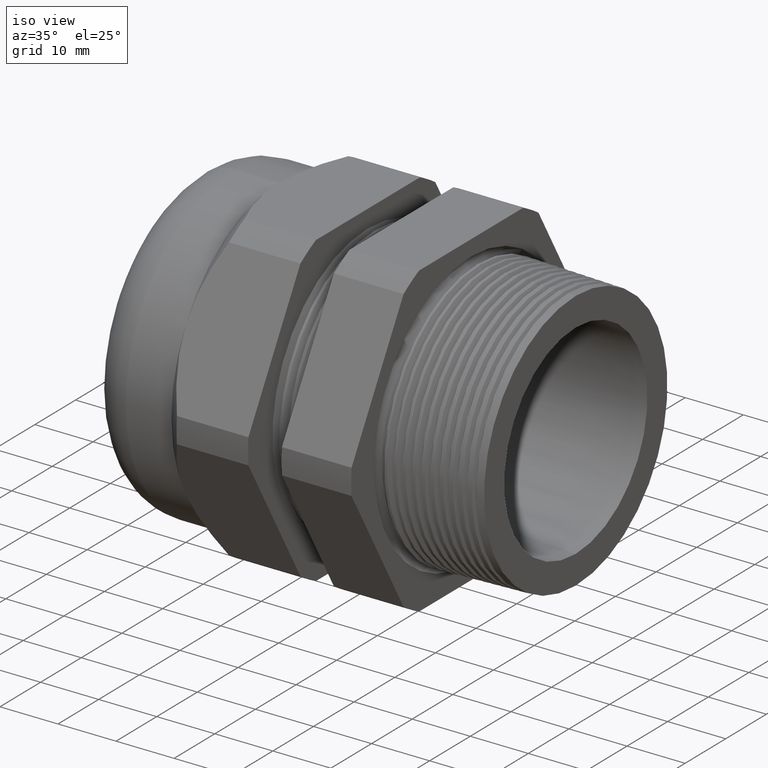
[diagram: clean part render]
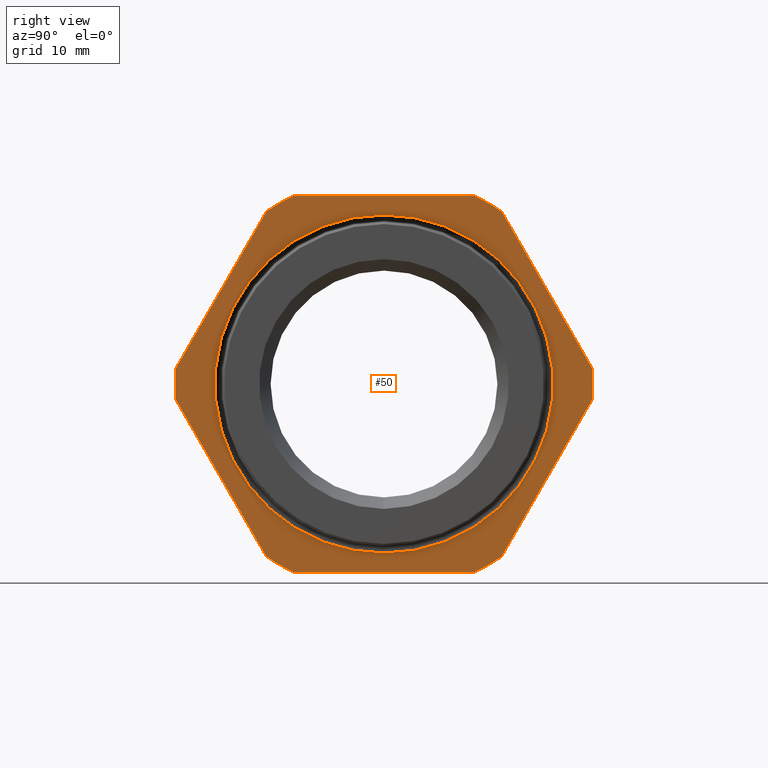
[diagram: tour spotlight — one face highlighted and labeled with its STEP entity id]
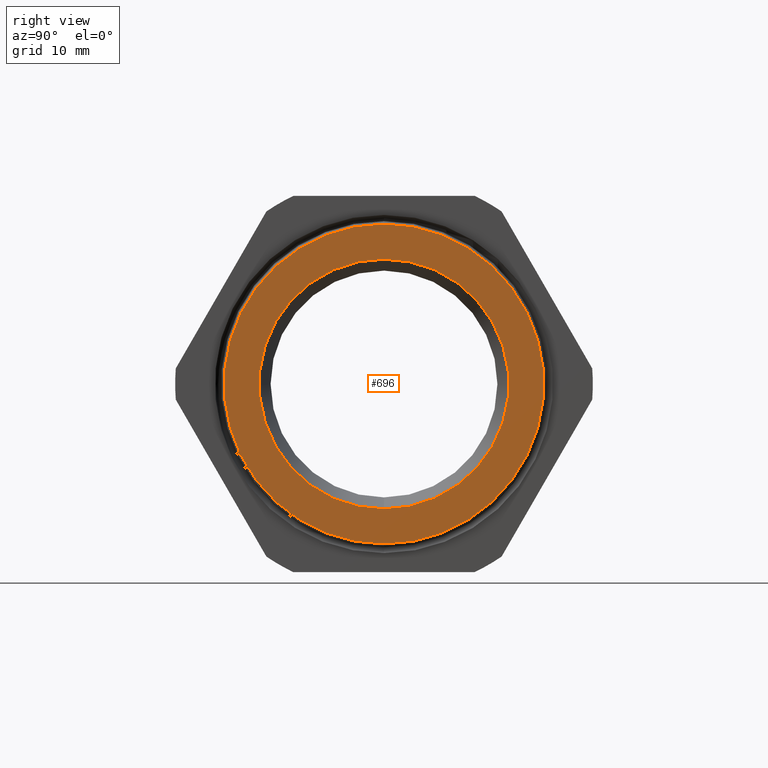
[diagram: tour spotlight — one face highlighted and labeled with its STEP entity id]
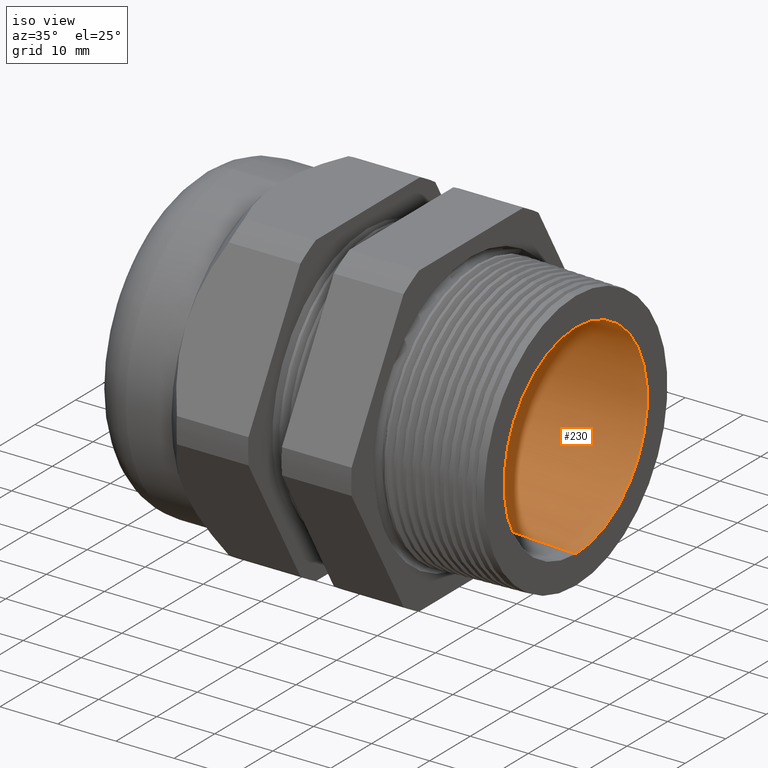
[diagram: tour spotlight — one face highlighted and labeled with its STEP entity id]
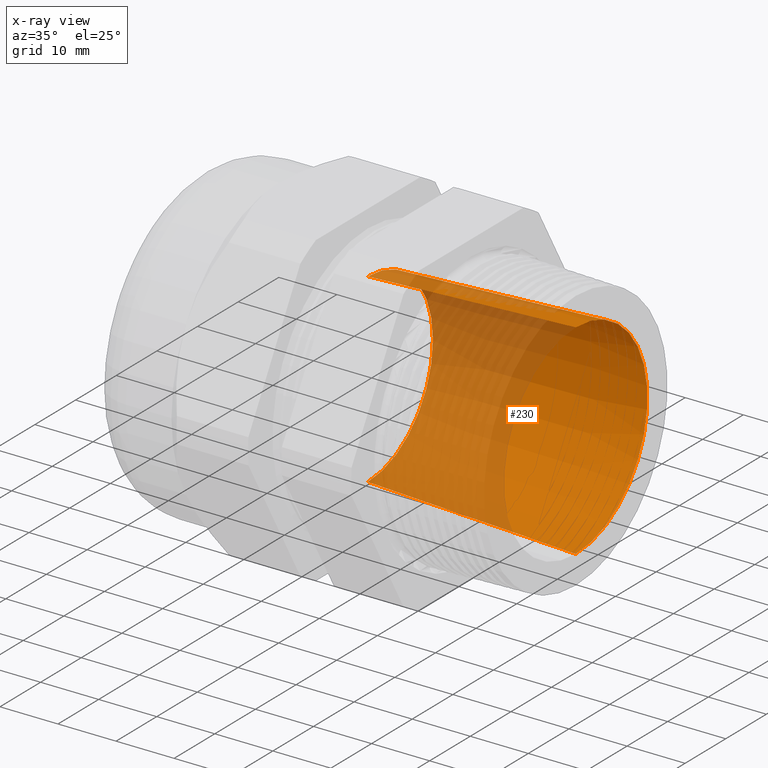
[diagram: x-ray of the same camera — body ghosted, this tour face saturated]
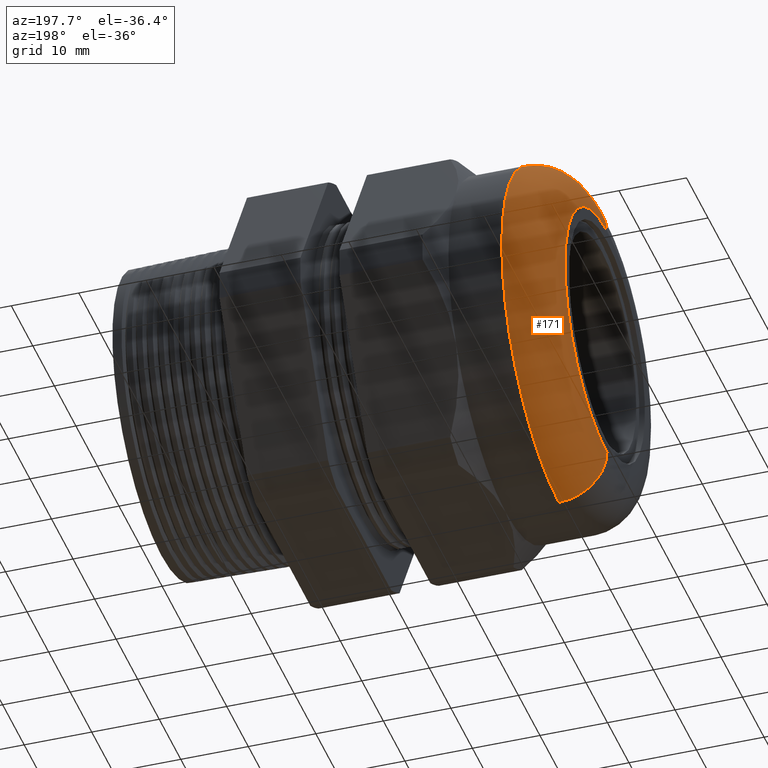
[diagram: tour spotlight — one face highlighted and labeled with its STEP entity id]
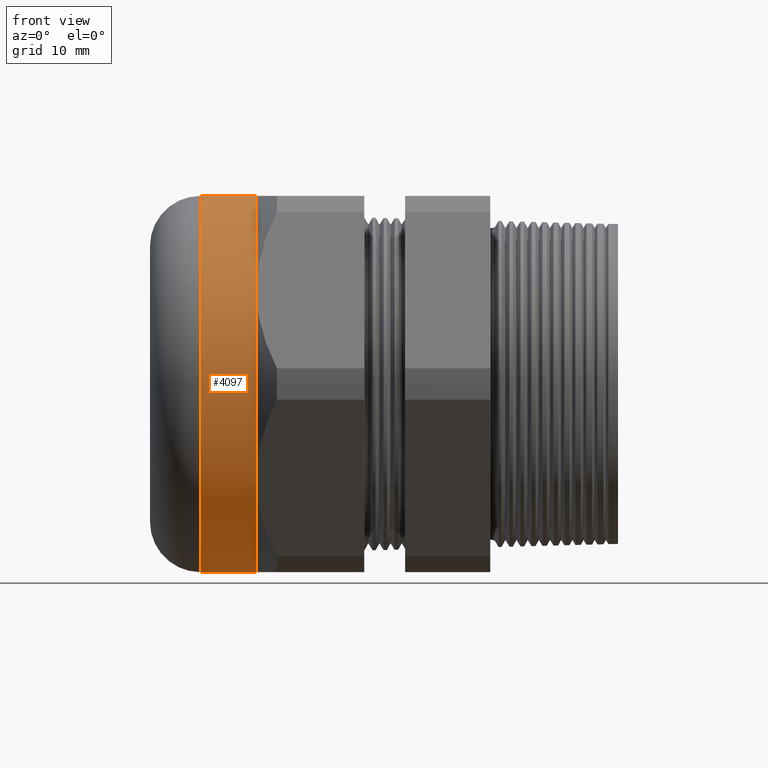
[diagram: tour spotlight — one face highlighted and labeled with its STEP entity id]
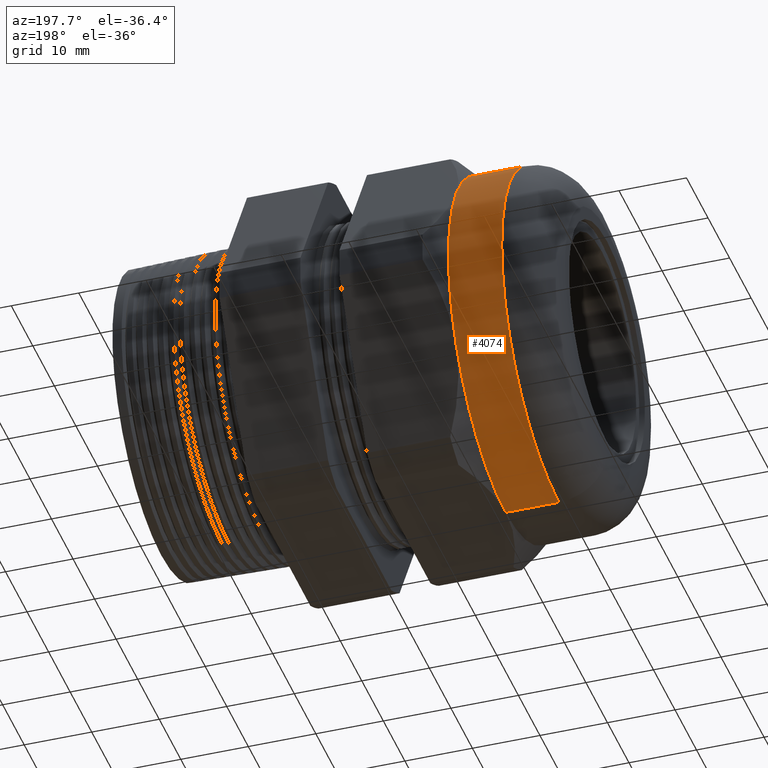
[diagram: tour spotlight — one face highlighted and labeled with its STEP entity id]
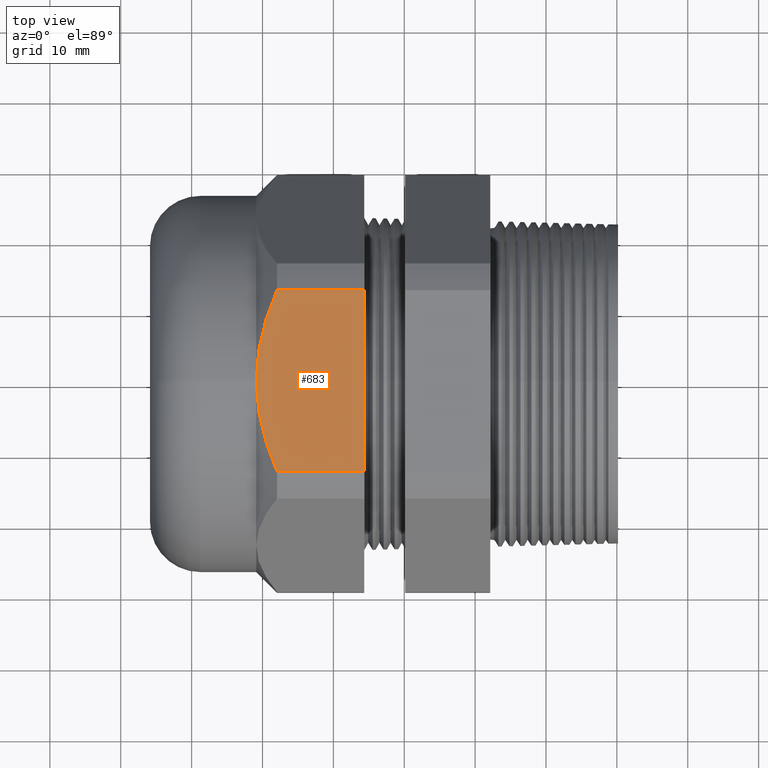
[diagram: tour spotlight — one face highlighted and labeled with its STEP entity id]
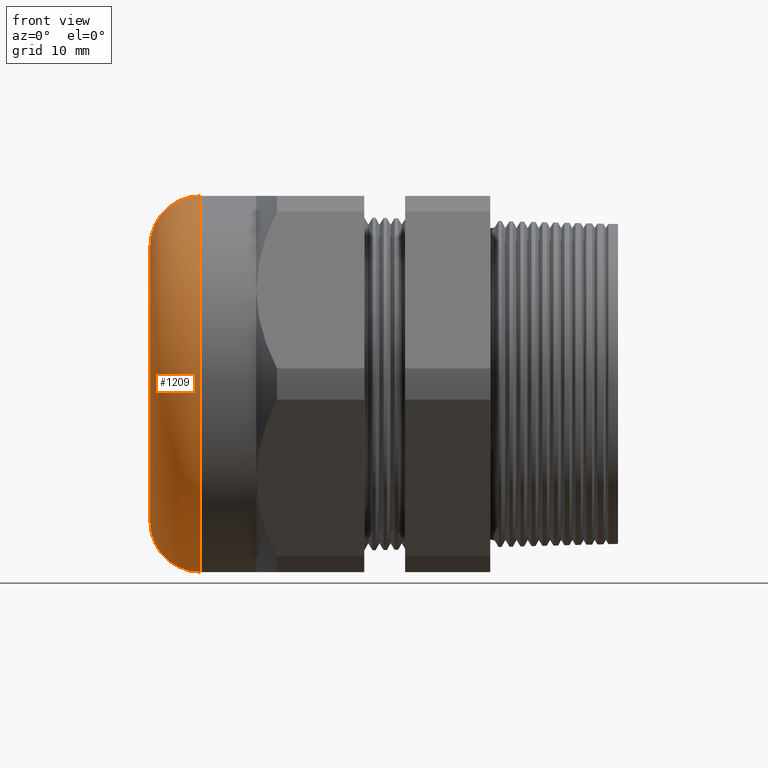
[diagram: tour spotlight — one face highlighted and labeled with its STEP entity id]
A machine part: a face-by-face anatomy tour. The part has 152 B-rep faces; the first image is the clean iso view, then the 8 largest visible faces are spotlighted one at a time (largest first), each with its STEP entity span.

Face 1 — right view, entity #50. In plain terms, the highlighted planar face has unit normal (1, 0, 0).
Definition (entity closure, byte-faithful):
#41 = EDGE_CURVE ( 'NONE', #44, #4137, #1325, .T. ) ;
#43 = ORIENTED_EDGE ( 'NONE', *, *, #41, .T. ) ;
#44 = VERTEX_POINT ( 'NONE', #1320 ) ;
#45 = VERTEX_POINT ( 'NONE', #1319 ) ;
#46 = EDGE_LOOP ( 'NONE', ( #47, #43, #4134, #4133, #62, #61, #119, #4119, #4146, #4136, #4150, #4132 ) ) ;
#47 = ORIENTED_EDGE ( 'NONE', *, *, #48, .T. ) ;
#48 = EDGE_CURVE ( 'NONE', #45, #44, #1317, .T. ) ;
#50 = ADVANCED_FACE ( 'NONE', ( #1313, #1312 ), #1379, .T. ) ;
#58 = VERTEX_POINT ( 'NONE', #1361 ) ;
#60 = EDGE_CURVE ( 'NONE', #63, #58, #1360, .T. ) ;
#61 = ORIENTED_EDGE ( 'NONE', *, *, #60, .T. ) ;
#62 = ORIENTED_EDGE ( 'NONE', *, *, #64, .T. ) ;
#63 = VERTEX_POINT ( 'NONE', #1355 ) ;
#64 = EDGE_CURVE ( 'NONE', #4147, #63, #1354, .T. ) ;
#119 = ORIENTED_EDGE ( 'NONE', *, *, #4121, .T. ) ;
#764 = VERTEX_POINT ( 'NONE', #2618 ) ;
#767 = EDGE_CURVE ( 'NONE', #764, #770, #2617, .T. ) ;
#770 = VERTEX_POINT ( 'NONE', #2669 ) ;
#1312 = FACE_BOUND ( 'NONE', #4166, .T. ) ;
#1313 = FACE_OUTER_BOUND ( 'NONE', #46, .T. ) ;
#1314 = DIRECTION ( 'NONE',  ( 0.0000000000000000000, 0.4999999999999996100, 0.8660254037844388200 ) ) ;
#1315 = VECTOR ( 'NONE', #1314, 39.37007874015748100 ) ;
#1316 = CARTESIAN_POINT ( 'NONE',  ( -0.3100000000000000000, 1.427496546954738300, 0.3824965469547380000 ) ) ;
#1317 = LINE ( 'NONE', #1316, #1315 ) ;
#1319 = CARTESIAN_POINT ( 'NONE',  ( -0.3099999999999997200, 0.6532729870224199800, -0.9584979952648858800 ) ) ;
#1320 = CARTESIAN_POINT ( 'NONE',  ( -0.3100000000000000000, 1.156720106887058100, -0.08650200473511392200 ) ) ;
#1321 = DIRECTION ( 'NONE',  ( 0.0000000000000000000, 0.0000000000000000000, -1.000000000000000000 ) ) ;
#1322 = DIRECTION ( 'NONE',  ( 1.000000000000000000, 0.0000000000000000000, 0.0000000000000000000 ) ) ;
#1323 = CARTESIAN_POINT ( 'NONE',  ( -0.3100000000000000000, 0.0000000000000000000, 0.0000000000000000000 ) ) ;
#1324 = AXIS2_PLACEMENT_3D ( 'NONE', #1323, #1322, #1321 ) ;
#1325 = CIRCLE ( 'NONE', #1324, 1.159950000000000000 ) ;
#1351 = DIRECTION ( 'NONE',  ( 0.0000000000000000000, -1.000000000000000000, 0.0000000000000000000 ) ) ;
#1352 = VECTOR ( 'NONE', #1351, 39.37007874015748100 ) ;
#1353 = CARTESIAN_POINT ( 'NONE',  ( -0.3100000000000000000, 2.089999999999999900, 1.044999999999999700 ) ) ;
#1354 = LINE ( 'NONE', #1353, #1352 ) ;
#1355 = CARTESIAN_POINT ( 'NONE',  ( -0.3099999999999997200, -0.5034471198646400800, 1.044999999999999300 ) ) ;
#1356 = DIRECTION ( 'NONE',  ( 0.0000000000000000000, 0.0000000000000000000, -1.000000000000000000 ) ) ;
#1357 = DIRECTION ( 'NONE',  ( 1.000000000000000000, 0.0000000000000000000, 0.0000000000000000000 ) ) ;
#1358 = CARTESIAN_POINT ( 'NONE',  ( -0.3100000000000000000, 0.0000000000000000000, 0.0000000000000000000 ) ) ;
#1359 = AXIS2_PLACEMENT_3D ( 'NONE', #1358, #1357, #1356 ) ;
#1360 = CIRCLE ( 'NONE', #1359, 1.159950000000000000 ) ;
#1361 = CARTESIAN_POINT ( 'NONE',  ( -0.3099999999999997200, -0.6532729870224188700, 0.9584979952648864400 ) ) ;
#1375 = DIRECTION ( 'NONE',  ( 0.0000000000000000000, 0.0000000000000000000, -1.000000000000000000 ) ) ;
#1376 = DIRECTION ( 'NONE',  ( 1.000000000000000000, 0.0000000000000000000, 0.0000000000000000000 ) ) ;
#1377 = CARTESIAN_POINT ( 'NONE',  ( -0.3100000000000000000, 2.089999999999999900, 0.0000000000000000000 ) ) ;
#1378 = AXIS2_PLACEMENT_3D ( 'NONE', #1377, #1376, #1375 ) ;
#1379 = PLANE ( 'NONE',  #1378 ) ;
#2614 = DIRECTION ( 'NONE',  ( -1.000000000000000000, 0.0000000000000000000, 0.0000000000000000000 ) ) ;
#2615 = CARTESIAN_POINT ( 'NONE',  ( -0.3100000000000000000, 0.0000000000000000000, 0.0000000000000000000 ) ) ;
#2616 = AXIS2_PLACEMENT_3D ( 'NONE', #2615, #2614, #2676 ) ;
#2617 = CIRCLE ( 'NONE', #2616, 0.9391709214538901400 ) ;
#2618 = CARTESIAN_POINT ( 'NONE',  ( -0.3100000000000000000, 0.0000000000000000000, -0.9391709214538901400 ) ) ;
#2669 = CARTESIAN_POINT ( 'NONE',  ( -0.3100000000000000000, 1.150152662810777000E-016, 0.9391709214538901400 ) ) ;
#2676 = DIRECTION ( 'NONE',  ( 0.0000000000000000000, 0.0000000000000000000, -1.000000000000000000 ) ) ;
#3736 = DIRECTION ( 'NONE',  ( 0.0000000000000000000, -0.4999999999999997200, -0.8660254037844388200 ) ) ;
#3737 = VECTOR ( 'NONE', #3736, 39.37007874015748900 ) ;
#3738 = CARTESIAN_POINT ( 'NONE',  ( -0.3100000000000000000, -0.3824965469547395000, 1.427496546954737800 ) ) ;
#3739 = LINE ( 'NONE', #3738, #3737 ) ;
#3740 = CARTESIAN_POINT ( 'NONE',  ( -0.3099999999999997200, -1.156720106887058100, 0.08650200473511256100 ) ) ;
#3741 = DIRECTION ( 'NONE',  ( 0.0000000000000000000, 0.0000000000000000000, -1.000000000000000000 ) ) ;
#3742 = DIRECTION ( 'NONE',  ( 1.000000000000000000, 0.0000000000000000000, 0.0000000000000000000 ) ) ;
#3743 = CARTESIAN_POINT ( 'NONE',  ( -0.3100000000000000000, 0.0000000000000000000, 0.0000000000000000000 ) ) ;
#3744 = AXIS2_PLACEMENT_3D ( 'NONE', #3743, #3742, #3741 ) ;
#3745 = CIRCLE ( 'NONE', #3744, 1.159950000000000000 ) ;
#3767 = CARTESIAN_POINT ( 'NONE',  ( -0.3099999999999997200, 0.5034471198646385300, -1.045000000000000200 ) ) ;
#3768 = CARTESIAN_POINT ( 'NONE',  ( -0.3099999999999997200, 0.6532729870224199800, 0.9584979952648858800 ) ) ;
#3769 = CARTESIAN_POINT ( 'NONE',  ( -0.3099999999999997200, -1.156720106887057800, -0.08650200473511345000 ) ) ;
#3771 = DIRECTION ( 'NONE',  ( 0.0000000000000000000, -0.4999999999999998300, 0.8660254037844388200 ) ) ;
#3772 = VECTOR ( 'NONE', #3771, 39.37007874015748100 ) ;
#3773 = CARTESIAN_POINT ( 'NONE',  ( -0.3100000000000000000, 1.427496546954738500, -0.3824965469547380000 ) ) ;
#3774 = LINE ( 'NONE', #3773, #3772 ) ;
#3775 = CARTESIAN_POINT ( 'NONE',  ( -0.3099999999999997200, -0.5034471198646384100, -1.045000000000000200 ) ) ;
#3776 = DIRECTION ( 'NONE',  ( 0.0000000000000000000, 0.5000000000000002200, -0.8660254037844386000 ) ) ;
#3777 = VECTOR ( 'NONE', #3776, 39.37007874015747400 ) ;
#3778 = CARTESIAN_POINT ( 'NONE',  ( -0.3100000000000000000, -0.3824965469547378400, -1.427496546954738300 ) ) ;
#3779 = LINE ( 'NONE', #3778, #3777 ) ;
#3780 = CARTESIAN_POINT ( 'NONE',  ( -0.3099999999999997200, 1.156720106887057600, 0.08650200473511453200 ) ) ;
#3781 = CARTESIAN_POINT ( 'NONE',  ( -0.3099999999999997200, -0.6532729870224186500, -0.9584979952648867700 ) ) ;
#3815 = DIRECTION ( 'NONE',  ( 0.0000000000000000000, 0.0000000000000000000, -1.000000000000000000 ) ) ;
#3816 = DIRECTION ( 'NONE',  ( 1.000000000000000000, 0.0000000000000000000, 0.0000000000000000000 ) ) ;
#3817 = AXIS2_PLACEMENT_3D ( 'NONE', #3824, #3816, #3815 ) ;
#3818 = CIRCLE ( 'NONE', #3817, 1.159950000000000000 ) ;
#3819 = DIRECTION ( 'NONE',  ( 0.0000000000000000000, 0.0000000000000000000, -1.000000000000000000 ) ) ;
#3820 = DIRECTION ( 'NONE',  ( 1.000000000000000000, 0.0000000000000000000, 0.0000000000000000000 ) ) ;
#3821 = CARTESIAN_POINT ( 'NONE',  ( -0.3100000000000000000, 0.0000000000000000000, 0.0000000000000000000 ) ) ;
#3822 = AXIS2_PLACEMENT_3D ( 'NONE', #3821, #3820, #3819 ) ;
#3823 = CIRCLE ( 'NONE', #3822, 1.159950000000000000 ) ;
#3824 = CARTESIAN_POINT ( 'NONE',  ( -0.3100000000000000000, 0.0000000000000000000, 0.0000000000000000000 ) ) ;
#3825 = CARTESIAN_POINT ( 'NONE',  ( -0.3099999999999997200, 0.5034471198646395300, 1.044999999999999700 ) ) ;
#3826 = DIRECTION ( 'NONE',  ( 0.0000000000000000000, 1.000000000000000000, 0.0000000000000000000 ) ) ;
#3827 = VECTOR ( 'NONE', #3826, 39.37007874015748100 ) ;
#3828 = CARTESIAN_POINT ( 'NONE',  ( -0.3100000000000000000, 2.089999999999999900, -1.045000000000000200 ) ) ;
#3829 = LINE ( 'NONE', #3828, #3827 ) ;
#3843 = DIRECTION ( 'NONE',  ( 0.0000000000000000000, 0.0000000000000000000, -1.000000000000000000 ) ) ;
#3844 = DIRECTION ( 'NONE',  ( 1.000000000000000000, 0.0000000000000000000, 0.0000000000000000000 ) ) ;
#3845 = CARTESIAN_POINT ( 'NONE',  ( -0.3100000000000000000, 0.0000000000000000000, 0.0000000000000000000 ) ) ;
#3846 = AXIS2_PLACEMENT_3D ( 'NONE', #3845, #3844, #3843 ) ;
#3847 = CIRCLE ( 'NONE', #3846, 1.159950000000000000 ) ;
#3848 = DIRECTION ( 'NONE',  ( 0.0000000000000000000, 0.0000000000000000000, -1.000000000000000000 ) ) ;
#3849 = DIRECTION ( 'NONE',  ( -1.000000000000000000, 0.0000000000000000000, 0.0000000000000000000 ) ) ;
#3850 = AXIS2_PLACEMENT_3D ( 'NONE', #3856, #3849, #3848 ) ;
#3851 = CIRCLE ( 'NONE', #3850, 0.9391709214538901400 ) ;
#3856 = CARTESIAN_POINT ( 'NONE',  ( -0.3100000000000000000, 0.0000000000000000000, 0.0000000000000000000 ) ) ;
#4117 = EDGE_CURVE ( 'NONE', #4120, #4142, #3745, .T. ) ;
#4119 = ORIENTED_EDGE ( 'NONE', *, *, #4117, .T. ) ;
#4120 = VERTEX_POINT ( 'NONE', #3740 ) ;
#4121 = EDGE_CURVE ( 'NONE', #58, #4120, #3739, .T. ) ;
#4132 = ORIENTED_EDGE ( 'NONE', *, *, #4169, .T. ) ;
#4133 = ORIENTED_EDGE ( 'NONE', *, *, #4149, .T. ) ;
#4134 = ORIENTED_EDGE ( 'NONE', *, *, #4140, .T. ) ;
#4135 = VERTEX_POINT ( 'NONE', #3781 ) ;
#4136 = ORIENTED_EDGE ( 'NONE', *, *, #4148, .T. ) ;
#4137 = VERTEX_POINT ( 'NONE', #3780 ) ;
#4138 = EDGE_CURVE ( 'NONE', #4142, #4135, #3779, .T. ) ;
#4139 = VERTEX_POINT ( 'NONE', #3775 ) ;
#4140 = EDGE_CURVE ( 'NONE', #4137, #4143, #3774, .T. ) ;
#4142 = VERTEX_POINT ( 'NONE', #3769 ) ;
#4143 = VERTEX_POINT ( 'NONE', #3768 ) ;
#4144 = VERTEX_POINT ( 'NONE', #3767 ) ;
#4145 = EDGE_CURVE ( 'NONE', #4139, #4144, #3829, .T. ) ;
#4146 = ORIENTED_EDGE ( 'NONE', *, *, #4138, .T. ) ;
#4147 = VERTEX_POINT ( 'NONE', #3825 ) ;
#4148 = EDGE_CURVE ( 'NONE', #4135, #4139, #3823, .T. ) ;
#4149 = EDGE_CURVE ( 'NONE', #4143, #4147, #3818, .T. ) ;
#4150 = ORIENTED_EDGE ( 'NONE', *, *, #4145, .T. ) ;
#4162 = ORIENTED_EDGE ( 'NONE', *, *, #767, .T. ) ;
#4163 = EDGE_CURVE ( 'NONE', #770, #764, #3851, .T. ) ;
#4164 = ORIENTED_EDGE ( 'NONE', *, *, #4163, .T. ) ;
#4166 = EDGE_LOOP ( 'NONE', ( #4162, #4164 ) ) ;
#4169 = EDGE_CURVE ( 'NONE', #4144, #45, #3847, .T. ) ;

Face 2 — right view, entity #696. In plain terms, the highlighted planar face has unit normal (1, 0, 0).
Definition (entity closure, byte-faithful):
#375 = VERTEX_POINT ( 'NONE', #1929 ) ;
#379 = EDGE_CURVE ( 'NONE', #380, #375, #1980, .T. ) ;
#380 = VERTEX_POINT ( 'NONE', #1976 ) ;
#423 = ORIENTED_EDGE ( 'NONE', *, *, #379, .F. ) ;
#424 = ORIENTED_EDGE ( 'NONE', *, *, #425, .F. ) ;
#425 = EDGE_CURVE ( 'NONE', #375, #380, #2030, .T. ) ;
#434 = EDGE_LOOP ( 'NONE', ( #424, #423 ) ) ;
#436 = ORIENTED_EDGE ( 'NONE', *, *, #4091, .T. ) ;
#676 = EDGE_LOOP ( 'NONE', ( #697, #436 ) ) ;
#677 = EDGE_CURVE ( 'NONE', #4090, #4089, #2477, .T. ) ;
#696 = ADVANCED_FACE ( 'NONE', ( #2489, #2488 ), #2486, .T. ) ;
#697 = ORIENTED_EDGE ( 'NONE', *, *, #677, .T. ) ;
#1923 = CARTESIAN_POINT ( 'NONE',  ( 0.4000000000000000800, 0.0000000000000000000, 0.0000000000000000000 ) ) ;
#1929 = CARTESIAN_POINT ( 'NONE',  ( 0.4000000000000000800, 0.0000000000000000000, -0.6937500000000000900 ) ) ;
#1976 = CARTESIAN_POINT ( 'NONE',  ( 0.4000000000000000800, 8.495987169084764700E-017, 0.6937500000000000900 ) ) ;
#1977 = DIRECTION ( 'NONE',  ( 0.0000000000000000000, 0.0000000000000000000, -1.000000000000000000 ) ) ;
#1978 = DIRECTION ( 'NONE',  ( 1.000000000000000000, 0.0000000000000000000, 0.0000000000000000000 ) ) ;
#1979 = AXIS2_PLACEMENT_3D ( 'NONE', #1923, #1978, #1977 ) ;
#1980 = CIRCLE ( 'NONE', #1979, 0.6937500000000000900 ) ;
#2027 = DIRECTION ( 'NONE',  ( 0.0000000000000000000, 0.0000000000000000000, -1.000000000000000000 ) ) ;
#2028 = DIRECTION ( 'NONE',  ( 1.000000000000000000, 0.0000000000000000000, 0.0000000000000000000 ) ) ;
#2029 = AXIS2_PLACEMENT_3D ( 'NONE', #2035, #2028, #2027 ) ;
#2030 = CIRCLE ( 'NONE', #2029, 0.6937500000000000900 ) ;
#2035 = CARTESIAN_POINT ( 'NONE',  ( 0.4000000000000000800, 0.0000000000000000000, 0.0000000000000000000 ) ) ;
#2474 = DIRECTION ( 'NONE',  ( 0.0000000000000000000, 0.0000000000000000000, -1.000000000000000000 ) ) ;
#2475 = DIRECTION ( 'NONE',  ( 1.000000000000000000, 0.0000000000000000000, 0.0000000000000000000 ) ) ;
#2476 = AXIS2_PLACEMENT_3D ( 'NONE', #2482, #2475, #2474 ) ;
#2477 = CIRCLE ( 'NONE', #2476, 0.8880922528443195900 ) ;
#2482 = CARTESIAN_POINT ( 'NONE',  ( 0.3999999999999999700, 0.0000000000000000000, 0.0000000000000000000 ) ) ;
#2486 = PLANE ( 'NONE',  #2549 ) ;
#2487 = CARTESIAN_POINT ( 'NONE',  ( 0.4000000000000000200, 0.6937500000000000900, 0.0000000000000000000 ) ) ;
#2488 = FACE_BOUND ( 'NONE', #434, .T. ) ;
#2489 = FACE_OUTER_BOUND ( 'NONE', #676, .T. ) ;
#2547 = DIRECTION ( 'NONE',  ( 0.0000000000000000000, 0.0000000000000000000, -1.000000000000000000 ) ) ;
#2548 = DIRECTION ( 'NONE',  ( 1.000000000000000000, 0.0000000000000000000, 0.0000000000000000000 ) ) ;
#2549 = AXIS2_PLACEMENT_3D ( 'NONE', #2487, #2548, #2547 ) ;
#3666 = DIRECTION ( 'NONE',  ( 0.0000000000000000000, 0.0000000000000000000, -1.000000000000000000 ) ) ;
#3667 = DIRECTION ( 'NONE',  ( 1.000000000000000000, 0.0000000000000000000, 0.0000000000000000000 ) ) ;
#3668 = AXIS2_PLACEMENT_3D ( 'NONE', #3680, #3667, #3666 ) ;
#3669 = CIRCLE ( 'NONE', #3668, 0.8880922528443195900 ) ;
#3680 = CARTESIAN_POINT ( 'NONE',  ( 0.3999999999999999700, 0.0000000000000000000, 0.0000000000000000000 ) ) ;
#3681 = CARTESIAN_POINT ( 'NONE',  ( 0.3999999999999999700, 0.0000000000000000000, 0.8880922528443195900 ) ) ;
#3683 = CARTESIAN_POINT ( 'NONE',  ( 0.3999999999999999700, 1.088459086049565000E-016, -0.8880922528443195900 ) ) ;
#4089 = VERTEX_POINT ( 'NONE', #3683 ) ;
#4090 = VERTEX_POINT ( 'NONE', #3681 ) ;
#4091 = EDGE_CURVE ( 'NONE', #4089, #4090, #3669, .T. ) ;

Face 3 — iso view, entity #230. An x-ray twin of the same camera follows (body ghosted, this face saturated) — the face is partly hidden behind the body. In plain terms, the highlighted conical surface has half-angle 2.59 deg.
Definition (entity closure, byte-faithful):
#200 = EDGE_LOOP ( 'NONE', ( #417, #415, #412, #413 ) ) ;
#230 = ADVANCED_FACE ( 'NONE', ( #1692 ), #1691, .F. ) ;
#375 = VERTEX_POINT ( 'NONE', #1929 ) ;
#380 = VERTEX_POINT ( 'NONE', #1976 ) ;
#381 = EDGE_CURVE ( 'NONE', #590, #380, #1975, .T. ) ;
#384 = EDGE_CURVE ( 'NONE', #386, #375, #1967, .T. ) ;
#386 = VERTEX_POINT ( 'NONE', #1963 ) ;
#412 = ORIENTED_EDGE ( 'NONE', *, *, #384, .T. ) ;
#413 = ORIENTED_EDGE ( 'NONE', *, *, #425, .T. ) ;
#415 = ORIENTED_EDGE ( 'NONE', *, *, #418, .F. ) ;
#417 = ORIENTED_EDGE ( 'NONE', *, *, #381, .F. ) ;
#418 = EDGE_CURVE ( 'NONE', #386, #590, #2042, .T. ) ;
#425 = EDGE_CURVE ( 'NONE', #375, #380, #2030, .T. ) ;
#590 = VERTEX_POINT ( 'NONE', #2273 ) ;
#1688 = DIRECTION ( 'NONE',  ( 0.0000000000000000000, 0.0000000000000000000, -1.000000000000000000 ) ) ;
#1689 = DIRECTION ( 'NONE',  ( 1.000000000000000000, 0.0000000000000000000, 0.0000000000000000000 ) ) ;
#1690 = AXIS2_PLACEMENT_3D ( 'NONE', #1697, #1689, #1688 ) ;
#1691 = CONICAL_SURFACE ( 'NONE', #1690, 0.6300000000000000000, 0.04519960285840475500 ) ;
#1692 = FACE_OUTER_BOUND ( 'NONE', #200, .T. ) ;
#1697 = CARTESIAN_POINT ( 'NONE',  ( -1.009449999999999500, 0.0000000000000000000, 0.0000000000000000000 ) ) ;
#1929 = CARTESIAN_POINT ( 'NONE',  ( 0.4000000000000000800, 0.0000000000000000000, -0.6937500000000000900 ) ) ;
#1963 = CARTESIAN_POINT ( 'NONE',  ( -1.009449999999999500, 0.0000000000000000000, -0.6300000000000000000 ) ) ;
#1964 = DIRECTION ( 'NONE',  ( 0.9989786718499510400, 0.0000000000000000000, -0.04518421393482174200 ) ) ;
#1965 = VECTOR ( 'NONE', #1964, 39.37007874015748900 ) ;
#1966 = CARTESIAN_POINT ( 'NONE',  ( -1.009449999999999500, 0.0000000000000000000, -0.6300000000000000000 ) ) ;
#1967 = LINE ( 'NONE', #1966, #1965 ) ;
#1972 = DIRECTION ( 'NONE',  ( 0.9989786718499510400, 5.533470296726868500E-018, 0.04518421393482174200 ) ) ;
#1973 = VECTOR ( 'NONE', #1972, 39.37007874015748900 ) ;
#1974 = CARTESIAN_POINT ( 'NONE',  ( -1.009449999999999500, 7.715274834628325400E-017, 0.6300000000000000000 ) ) ;
#1975 = LINE ( 'NONE', #1974, #1973 ) ;
#1976 = CARTESIAN_POINT ( 'NONE',  ( 0.4000000000000000800, 8.495987169084764700E-017, 0.6937500000000000900 ) ) ;
#2027 = DIRECTION ( 'NONE',  ( 0.0000000000000000000, 0.0000000000000000000, -1.000000000000000000 ) ) ;
#2028 = DIRECTION ( 'NONE',  ( 1.000000000000000000, 0.0000000000000000000, 0.0000000000000000000 ) ) ;
#2029 = AXIS2_PLACEMENT_3D ( 'NONE', #2035, #2028, #2027 ) ;
#2030 = CIRCLE ( 'NONE', #2029, 0.6937500000000000900 ) ;
#2035 = CARTESIAN_POINT ( 'NONE',  ( 0.4000000000000000800, 0.0000000000000000000, 0.0000000000000000000 ) ) ;
#2038 = DIRECTION ( 'NONE',  ( 0.0000000000000000000, 0.0000000000000000000, -1.000000000000000000 ) ) ;
#2039 = DIRECTION ( 'NONE',  ( 1.000000000000000000, 0.0000000000000000000, 0.0000000000000000000 ) ) ;
#2040 = CARTESIAN_POINT ( 'NONE',  ( -1.009449999999999500, 0.0000000000000000000, 0.0000000000000000000 ) ) ;
#2041 = AXIS2_PLACEMENT_3D ( 'NONE', #2040, #2039, #2038 ) ;
#2042 = CIRCLE ( 'NONE', #2041, 0.6300000000000000000 ) ;
#2273 = CARTESIAN_POINT ( 'NONE',  ( -1.009449999999999500, 8.105631001856545000E-017, 0.6300000000000000000 ) ) ;

Face 4 — auxiliary view, entity #171. In plain terms, the highlighted toroidal blend (fillet) surface has major radius 19.431 mm and minor (blend) radius 7.112 mm.
Definition (entity closure, byte-faithful):
#92 = ORIENTED_EDGE ( 'NONE', *, *, #149, .T. ) ;
#116 = VERTEX_POINT ( 'NONE', #1470 ) ;
#118 = VERTEX_POINT ( 'NONE', #1469 ) ;
#132 = EDGE_LOOP ( 'NONE', ( #162, #92, #161, #154 ) ) ;
#148 = VERTEX_POINT ( 'NONE', #1486 ) ;
#149 = EDGE_CURVE ( 'NONE', #118, #148, #1485, .T. ) ;
#152 = EDGE_CURVE ( 'NONE', #153, #148, #1540, .T. ) ;
#153 = VERTEX_POINT ( 'NONE', #1535 ) ;
#154 = ORIENTED_EDGE ( 'NONE', *, *, #158, .F. ) ;
#158 = EDGE_CURVE ( 'NONE', #116, #153, #1527, .T. ) ;
#161 = ORIENTED_EDGE ( 'NONE', *, *, #152, .F. ) ;
#162 = ORIENTED_EDGE ( 'NONE', *, *, #163, .F. ) ;
#163 = EDGE_CURVE ( 'NONE', #118, #116, #1521, .T. ) ;
#171 = ADVANCED_FACE ( 'NONE', ( #1566 ), #1565, .T. ) ;
#1469 = CARTESIAN_POINT ( 'NONE',  ( -1.919999999999999500, 0.0000000000000000000, -1.044999999999999900 ) ) ;
#1470 = CARTESIAN_POINT ( 'NONE',  ( -1.919999999999999500, 1.279755905108984100E-016, 1.044999999999999900 ) ) ;
#1481 = DIRECTION ( 'NONE',  ( 0.0000000000000000000, -1.224646799147353000E-016, 1.000000000000000000 ) ) ;
#1482 = DIRECTION ( 'NONE',  ( 0.0000000000000000000, 1.000000000000000000, 1.224646799147353200E-016 ) ) ;
#1483 = CARTESIAN_POINT ( 'NONE',  ( -1.919999999999999500, 9.368548013477251000E-017, -0.7649999999999999000 ) ) ;
#1484 = AXIS2_PLACEMENT_3D ( 'NONE', #1483, #1482, #1481 ) ;
#1485 = CIRCLE ( 'NONE', #1484, 0.2800000000000000300 ) ;
#1486 = CARTESIAN_POINT ( 'NONE',  ( -2.199999999999999300, 1.108305353228354700E-016, -0.7649999999999999000 ) ) ;
#1513 = DIRECTION ( 'NONE',  ( 0.0000000000000000000, 0.0000000000000000000, 1.000000000000000000 ) ) ;
#1514 = DIRECTION ( 'NONE',  ( 1.000000000000000000, 0.0000000000000000000, 0.0000000000000000000 ) ) ;
#1515 = CARTESIAN_POINT ( 'NONE',  ( -1.919999999999999500, 0.0000000000000000000, 0.0000000000000000000 ) ) ;
#1516 = AXIS2_PLACEMENT_3D ( 'NONE', #1515, #1514, #1513 ) ;
#1521 = CIRCLE ( 'NONE', #1516, 1.044999999999999900 ) ;
#1524 = DIRECTION ( 'NONE',  ( 0.0000000000000000000, 0.0000000000000000000, -1.000000000000000000 ) ) ;
#1525 = DIRECTION ( 'NONE',  ( 0.0000000000000000000, -1.000000000000000000, 0.0000000000000000000 ) ) ;
#1526 = AXIS2_PLACEMENT_3D ( 'NONE', #1533, #1525, #1524 ) ;
#1527 = CIRCLE ( 'NONE', #1526, 0.2800000000000000300 ) ;
#1533 = CARTESIAN_POINT ( 'NONE',  ( -1.919999999999999500, 0.0000000000000000000, 0.7649999999999999000 ) ) ;
#1535 = CARTESIAN_POINT ( 'NONE',  ( -2.199999999999999300, 0.0000000000000000000, 0.7649999999999999000 ) ) ;
#1536 = DIRECTION ( 'NONE',  ( 0.0000000000000000000, 0.0000000000000000000, 1.000000000000000000 ) ) ;
#1537 = DIRECTION ( 'NONE',  ( -1.000000000000000000, 0.0000000000000000000, 0.0000000000000000000 ) ) ;
#1538 = CARTESIAN_POINT ( 'NONE',  ( -2.199999999999999300, 0.0000000000000000000, 0.0000000000000000000 ) ) ;
#1539 = AXIS2_PLACEMENT_3D ( 'NONE', #1538, #1537, #1536 ) ;
#1540 = CIRCLE ( 'NONE', #1539, 0.7649999999999999000 ) ;
#1561 = DIRECTION ( 'NONE',  ( 0.0000000000000000000, 0.0000000000000000000, 1.000000000000000000 ) ) ;
#1562 = DIRECTION ( 'NONE',  ( -1.000000000000000000, 0.0000000000000000000, 0.0000000000000000000 ) ) ;
#1563 = CARTESIAN_POINT ( 'NONE',  ( -1.919999999999999500, 0.0000000000000000000, 0.0000000000000000000 ) ) ;
#1564 = AXIS2_PLACEMENT_3D ( 'NONE', #1563, #1562, #1561 ) ;
#1565 = TOROIDAL_SURFACE ( 'NONE', #1564, 0.7649999999999999000, 0.2800000000000000300 ) ;
#1566 = FACE_OUTER_BOUND ( 'NONE', #132, .T. ) ;

Face 5 — front view, entity #4097. In plain terms, the highlighted cylindrical surface (partial cylindrical patch) has radius 26.543 mm, axis along (1, 0, 0).
Definition (entity closure, byte-faithful):
#116 = VERTEX_POINT ( 'NONE', #1470 ) ;
#118 = VERTEX_POINT ( 'NONE', #1469 ) ;
#444 = ORIENTED_EDGE ( 'NONE', *, *, #704, .F. ) ;
#445 = EDGE_LOOP ( 'NONE', ( #444, #742, #739, #719, #721, #725 ) ) ;
#636 = VERTEX_POINT ( 'NONE', #2385 ) ;
#703 = VERTEX_POINT ( 'NONE', #2538 ) ;
#704 = EDGE_CURVE ( 'NONE', #116, #703, #2537, .T. ) ;
#710 = VERTEX_POINT ( 'NONE', #2524 ) ;
#715 = EDGE_CURVE ( 'NONE', #4039, #710, #2580, .T. ) ;
#719 = ORIENTED_EDGE ( 'NONE', *, *, #715, .F. ) ;
#721 = ORIENTED_EDGE ( 'NONE', *, *, #724, .F. ) ;
#724 = EDGE_CURVE ( 'NONE', #636, #4039, #2569, .T. ) ;
#725 = ORIENTED_EDGE ( 'NONE', *, *, #790, .F. ) ;
#738 = EDGE_CURVE ( 'NONE', #116, #118, #2602, .T. ) ;
#739 = ORIENTED_EDGE ( 'NONE', *, *, #4077, .T. ) ;
#742 = ORIENTED_EDGE ( 'NONE', *, *, #738, .T. ) ;
#790 = EDGE_CURVE ( 'NONE', #703, #636, #2692, .T. ) ;
#1469 = CARTESIAN_POINT ( 'NONE',  ( -1.919999999999999500, 0.0000000000000000000, -1.044999999999999900 ) ) ;
#1470 = CARTESIAN_POINT ( 'NONE',  ( -1.919999999999999500, 1.279755905108984100E-016, 1.044999999999999900 ) ) ;
#2385 = CARTESIAN_POINT ( 'NONE',  ( -1.609449999999999400, -0.9049965469547385200, 0.5224999999999997400 ) ) ;
#2524 = CARTESIAN_POINT ( 'NONE',  ( -1.609449999999999400, 0.0000000000000000000, -1.045000000000000400 ) ) ;
#2534 = DIRECTION ( 'NONE',  ( 1.000000000000000000, 0.0000000000000000000, 0.0000000000000000000 ) ) ;
#2535 = VECTOR ( 'NONE', #2534, 39.37007874015748100 ) ;
#2536 = CARTESIAN_POINT ( 'NONE',  ( 0.0000000000000000000, 1.279755905108984100E-016, 1.044999999999999900 ) ) ;
#2537 = LINE ( 'NONE', #2536, #2535 ) ;
#2538 = CARTESIAN_POINT ( 'NONE',  ( -1.609449999999999400, 0.0000000000000000000, 1.044999999999999700 ) ) ;
#2565 = DIRECTION ( 'NONE',  ( 0.0000000000000000000, 0.0000000000000000000, -1.000000000000000000 ) ) ;
#2566 = DIRECTION ( 'NONE',  ( 1.000000000000000000, 0.0000000000000000000, 0.0000000000000000000 ) ) ;
#2567 = CARTESIAN_POINT ( 'NONE',  ( -1.609449999999999400, 0.0000000000000000000, 0.0000000000000000000 ) ) ;
#2568 = AXIS2_PLACEMENT_3D ( 'NONE', #2567, #2566, #2565 ) ;
#2569 = CIRCLE ( 'NONE', #2568, 1.045000000000000200 ) ;
#2576 = DIRECTION ( 'NONE',  ( 0.0000000000000000000, 0.0000000000000000000, -1.000000000000000000 ) ) ;
#2577 = DIRECTION ( 'NONE',  ( 1.000000000000000000, 0.0000000000000000000, 0.0000000000000000000 ) ) ;
#2578 = CARTESIAN_POINT ( 'NONE',  ( -1.609449999999999400, 0.0000000000000000000, 0.0000000000000000000 ) ) ;
#2579 = AXIS2_PLACEMENT_3D ( 'NONE', #2578, #2577, #2576 ) ;
#2580 = CIRCLE ( 'NONE', #2579, 1.045000000000000200 ) ;
#2598 = DIRECTION ( 'NONE',  ( 0.0000000000000000000, 0.0000000000000000000, 1.000000000000000000 ) ) ;
#2599 = DIRECTION ( 'NONE',  ( 1.000000000000000000, 0.0000000000000000000, 0.0000000000000000000 ) ) ;
#2600 = CARTESIAN_POINT ( 'NONE',  ( -1.919999999999999500, 0.0000000000000000000, 0.0000000000000000000 ) ) ;
#2601 = AXIS2_PLACEMENT_3D ( 'NONE', #2600, #2599, #2598 ) ;
#2602 = CIRCLE ( 'NONE', #2601, 1.044999999999999900 ) ;
#2688 = DIRECTION ( 'NONE',  ( 0.0000000000000000000, 0.0000000000000000000, -1.000000000000000000 ) ) ;
#2689 = DIRECTION ( 'NONE',  ( 1.000000000000000000, 0.0000000000000000000, 0.0000000000000000000 ) ) ;
#2690 = CARTESIAN_POINT ( 'NONE',  ( -1.609449999999999400, 0.0000000000000000000, 0.0000000000000000000 ) ) ;
#2691 = AXIS2_PLACEMENT_3D ( 'NONE', #2690, #2689, #2688 ) ;
#2692 = CIRCLE ( 'NONE', #2691, 1.045000000000000200 ) ;
#3604 = CARTESIAN_POINT ( 'NONE',  ( -1.609449999999999400, -0.9049965469547381900, -0.5225000000000000800 ) ) ;
#3650 = DIRECTION ( 'NONE',  ( 1.000000000000000000, 0.0000000000000000000, 0.0000000000000000000 ) ) ;
#3651 = VECTOR ( 'NONE', #3650, 39.37007874015748100 ) ;
#3652 = CARTESIAN_POINT ( 'NONE',  ( 0.0000000000000000000, 0.0000000000000000000, -1.044999999999999900 ) ) ;
#3656 = LINE ( 'NONE', #3652, #3651 ) ;
#3722 = DIRECTION ( 'NONE',  ( 0.0000000000000000000, 0.0000000000000000000, -1.000000000000000000 ) ) ;
#3723 = DIRECTION ( 'NONE',  ( 1.000000000000000000, 0.0000000000000000000, 0.0000000000000000000 ) ) ;
#3724 = CARTESIAN_POINT ( 'NONE',  ( 0.0000000000000000000, 0.0000000000000000000, 0.0000000000000000000 ) ) ;
#3725 = AXIS2_PLACEMENT_3D ( 'NONE', #3724, #3723, #3722 ) ;
#3727 = CYLINDRICAL_SURFACE ( 'NONE', #3725, 1.044999999999999900 ) ;
#3728 = FACE_OUTER_BOUND ( 'NONE', #445, .T. ) ;
#4039 = VERTEX_POINT ( 'NONE', #3604 ) ;
#4077 = EDGE_CURVE ( 'NONE', #118, #710, #3656, .T. ) ;
#4097 = ADVANCED_FACE ( 'NONE', ( #3728 ), #3727, .T. ) ;

Face 6 — auxiliary view, entity #4074. In plain terms, the highlighted cylindrical surface (partial cylindrical patch) has radius 26.543 mm, axis along (1, 0, 0).
Definition (entity closure, byte-faithful):
#116 = VERTEX_POINT ( 'NONE', #1470 ) ;
#118 = VERTEX_POINT ( 'NONE', #1469 ) ;
#163 = EDGE_CURVE ( 'NONE', #118, #116, #1521, .T. ) ;
#701 = VERTEX_POINT ( 'NONE', #2544 ) ;
#703 = VERTEX_POINT ( 'NONE', #2538 ) ;
#704 = EDGE_CURVE ( 'NONE', #116, #703, #2537, .T. ) ;
#705 = EDGE_LOOP ( 'NONE', ( #4069, #4063, #709, #4059, #711, #4062 ) ) ;
#707 = EDGE_CURVE ( 'NONE', #701, #703, #2529, .T. ) ;
#709 = ORIENTED_EDGE ( 'NONE', *, *, #707, .F. ) ;
#710 = VERTEX_POINT ( 'NONE', #2524 ) ;
#711 = ORIENTED_EDGE ( 'NONE', *, *, #714, .F. ) ;
#714 = EDGE_CURVE ( 'NONE', #710, #4050, #2522, .T. ) ;
#1469 = CARTESIAN_POINT ( 'NONE',  ( -1.919999999999999500, 0.0000000000000000000, -1.044999999999999900 ) ) ;
#1470 = CARTESIAN_POINT ( 'NONE',  ( -1.919999999999999500, 1.279755905108984100E-016, 1.044999999999999900 ) ) ;
#1513 = DIRECTION ( 'NONE',  ( 0.0000000000000000000, 0.0000000000000000000, 1.000000000000000000 ) ) ;
#1514 = DIRECTION ( 'NONE',  ( 1.000000000000000000, 0.0000000000000000000, 0.0000000000000000000 ) ) ;
#1515 = CARTESIAN_POINT ( 'NONE',  ( -1.919999999999999500, 0.0000000000000000000, 0.0000000000000000000 ) ) ;
#1516 = AXIS2_PLACEMENT_3D ( 'NONE', #1515, #1514, #1513 ) ;
#1521 = CIRCLE ( 'NONE', #1516, 1.044999999999999900 ) ;
#2518 = DIRECTION ( 'NONE',  ( 0.0000000000000000000, 0.0000000000000000000, -1.000000000000000000 ) ) ;
#2519 = DIRECTION ( 'NONE',  ( 1.000000000000000000, 0.0000000000000000000, 0.0000000000000000000 ) ) ;
#2520 = CARTESIAN_POINT ( 'NONE',  ( -1.609449999999999400, 0.0000000000000000000, 0.0000000000000000000 ) ) ;
#2521 = AXIS2_PLACEMENT_3D ( 'NONE', #2520, #2519, #2518 ) ;
#2522 = CIRCLE ( 'NONE', #2521, 1.045000000000000200 ) ;
#2524 = CARTESIAN_POINT ( 'NONE',  ( -1.609449999999999400, 0.0000000000000000000, -1.045000000000000400 ) ) ;
#2525 = DIRECTION ( 'NONE',  ( 0.0000000000000000000, 0.0000000000000000000, -1.000000000000000000 ) ) ;
#2526 = DIRECTION ( 'NONE',  ( 1.000000000000000000, 0.0000000000000000000, 0.0000000000000000000 ) ) ;
#2527 = CARTESIAN_POINT ( 'NONE',  ( -1.609449999999999400, 0.0000000000000000000, 0.0000000000000000000 ) ) ;
#2528 = AXIS2_PLACEMENT_3D ( 'NONE', #2527, #2526, #2525 ) ;
#2529 = CIRCLE ( 'NONE', #2528, 1.045000000000000200 ) ;
#2534 = DIRECTION ( 'NONE',  ( 1.000000000000000000, 0.0000000000000000000, 0.0000000000000000000 ) ) ;
#2535 = VECTOR ( 'NONE', #2534, 39.37007874015748100 ) ;
#2536 = CARTESIAN_POINT ( 'NONE',  ( 0.0000000000000000000, 1.279755905108984100E-016, 1.044999999999999900 ) ) ;
#2537 = LINE ( 'NONE', #2536, #2535 ) ;
#2538 = CARTESIAN_POINT ( 'NONE',  ( -1.609449999999999400, 0.0000000000000000000, 1.044999999999999700 ) ) ;
#2544 = CARTESIAN_POINT ( 'NONE',  ( -1.609449999999999400, 0.9049965469547388600, 0.5225000000000000800 ) ) ;
#3579 = DIRECTION ( 'NONE',  ( 0.0000000000000000000, 0.0000000000000000000, -1.000000000000000000 ) ) ;
#3580 = DIRECTION ( 'NONE',  ( 1.000000000000000000, 0.0000000000000000000, 0.0000000000000000000 ) ) ;
#3581 = CARTESIAN_POINT ( 'NONE',  ( -1.609449999999999400, 0.0000000000000000000, 0.0000000000000000000 ) ) ;
#3582 = AXIS2_PLACEMENT_3D ( 'NONE', #3581, #3580, #3579 ) ;
#3583 = CIRCLE ( 'NONE', #3582, 1.045000000000000200 ) ;
#3584 = CARTESIAN_POINT ( 'NONE',  ( -1.609449999999999400, 0.9049965469547388600, -0.5224999999999998500 ) ) ;
#3650 = DIRECTION ( 'NONE',  ( 1.000000000000000000, 0.0000000000000000000, 0.0000000000000000000 ) ) ;
#3651 = VECTOR ( 'NONE', #3650, 39.37007874015748100 ) ;
#3652 = CARTESIAN_POINT ( 'NONE',  ( 0.0000000000000000000, 0.0000000000000000000, -1.044999999999999900 ) ) ;
#3656 = LINE ( 'NONE', #3652, #3651 ) ;
#3659 = DIRECTION ( 'NONE',  ( 0.0000000000000000000, 0.0000000000000000000, -1.000000000000000000 ) ) ;
#3660 = DIRECTION ( 'NONE',  ( 1.000000000000000000, 0.0000000000000000000, 0.0000000000000000000 ) ) ;
#3661 = AXIS2_PLACEMENT_3D ( 'NONE', #3663, #3660, #3659 ) ;
#3663 = CARTESIAN_POINT ( 'NONE',  ( 0.0000000000000000000, 0.0000000000000000000, 0.0000000000000000000 ) ) ;
#3664 = CYLINDRICAL_SURFACE ( 'NONE', #3661, 1.044999999999999900 ) ;
#3665 = FACE_OUTER_BOUND ( 'NONE', #705, .T. ) ;
#4049 = EDGE_CURVE ( 'NONE', #4050, #701, #3583, .T. ) ;
#4050 = VERTEX_POINT ( 'NONE', #3584 ) ;
#4059 = ORIENTED_EDGE ( 'NONE', *, *, #4049, .F. ) ;
#4062 = ORIENTED_EDGE ( 'NONE', *, *, #4077, .F. ) ;
#4063 = ORIENTED_EDGE ( 'NONE', *, *, #704, .T. ) ;
#4069 = ORIENTED_EDGE ( 'NONE', *, *, #163, .T. ) ;
#4074 = ADVANCED_FACE ( 'NONE', ( #3665 ), #3664, .T. ) ;
#4077 = EDGE_CURVE ( 'NONE', #118, #710, #3656, .T. ) ;

Face 7 — top view, entity #683. In plain terms, the highlighted planar face has unit normal (0, 0, 1).
Definition (entity closure, byte-faithful):
#624 = VERTEX_POINT ( 'NONE', #2347 ) ;
#625 = ORIENTED_EDGE ( 'NONE', *, *, #627, .F. ) ;
#627 = EDGE_CURVE ( 'NONE', #688, #624, #2346, .T. ) ;
#629 = ORIENTED_EDGE ( 'NONE', *, *, #630, .F. ) ;
#630 = EDGE_CURVE ( 'NONE', #624, #674, #2335, .T. ) ;
#633 = ORIENTED_EDGE ( 'NONE', *, *, #637, .T. ) ;
#637 = EDGE_CURVE ( 'NONE', #703, #674, #2376, .T. ) ;
#674 = VERTEX_POINT ( 'NONE', #2431 ) ;
#681 = EDGE_LOOP ( 'NONE', ( #687, #684, #633, #629, #625 ) ) ;
#683 = ADVANCED_FACE ( 'NONE', ( #2457 ), #2456, .T. ) ;
#684 = ORIENTED_EDGE ( 'NONE', *, *, #686, .T. ) ;
#686 = EDGE_CURVE ( 'NONE', #695, #703, #2515, .T. ) ;
#687 = ORIENTED_EDGE ( 'NONE', *, *, #692, .T. ) ;
#688 = VERTEX_POINT ( 'NONE', #2516 ) ;
#692 = EDGE_CURVE ( 'NONE', #688, #695, #2513, .T. ) ;
#695 = VERTEX_POINT ( 'NONE', #2495 ) ;
#703 = VERTEX_POINT ( 'NONE', #2538 ) ;
#2081 = CARTESIAN_POINT ( 'NONE',  ( 0.4000000000000000800, -0.5034471198646400800, 1.044999999999999300 ) ) ;
#2335 = LINE ( 'NONE', #2081, #2390 ) ;
#2343 = DIRECTION ( 'NONE',  ( 0.0000000000000000000, -1.000000000000000000, 0.0000000000000000000 ) ) ;
#2344 = VECTOR ( 'NONE', #2343, 39.37007874015748100 ) ;
#2345 = CARTESIAN_POINT ( 'NONE',  ( -1.009449999999999500, 0.9250000000000001600, 1.044999999999999700 ) ) ;
#2346 = LINE ( 'NONE', #2345, #2344 ) ;
#2347 = CARTESIAN_POINT ( 'NONE',  ( -1.009449999999999100, -0.5034471198646400800, 1.044999999999999300 ) ) ;
#2367 = CARTESIAN_POINT ( 'NONE',  ( -1.494499999999999500, -0.5034471198646400800, 1.044999999999999300 ) ) ;
#2368 = CARTESIAN_POINT ( 'NONE',  ( -1.511699667379293500, -0.4638188185209414200, 1.044999999999999500 ) ) ;
#2369 = CARTESIAN_POINT ( 'NONE',  ( -1.527583944234739200, -0.4234483023531737700, 1.044999999999999700 ) ) ;
#2370 = CARTESIAN_POINT ( 'NONE',  ( -1.555968422140071100, -0.3407977905260949300, 1.044999999999999500 ) ) ;
#2371 = CARTESIAN_POINT ( 'NONE',  ( -1.568245416907577500, -0.2991342696643448700, 1.044999999999999300 ) ) ;
#2372 = CARTESIAN_POINT ( 'NONE',  ( -1.598371035920961300, -0.1730359448115063000, 1.044999999999999700 ) ) ;
#2373 = CARTESIAN_POINT ( 'NONE',  ( -1.609449999999999400, -0.08745202795108886200, 1.044999999999999700 ) ) ;
#2374 = CARTESIAN_POINT ( 'NONE',  ( -1.609449999999999400, 0.0000000000000000000, 1.044999999999999700 ) ) ;
#2376 = B_SPLINE_CURVE_WITH_KNOTS ( 'NONE', 3,
 ( #2374, #2373, #2372, #2371, #2370, #2369, #2368, #2367 ),
 .UNSPECIFIED., .F., .F.,
 ( 4, 2, 2, 4 ),
 ( 0.03346784229927652500, 0.04001292135983688200, 0.04328546089011706100, 0.04655800042039724000 ),
 .UNSPECIFIED. ) ;
#2389 = DIRECTION ( 'NONE',  ( -1.000000000000000000, 0.0000000000000000000, 0.0000000000000000000 ) ) ;
#2390 = VECTOR ( 'NONE', #2389, 39.37007874015748100 ) ;
#2431 = CARTESIAN_POINT ( 'NONE',  ( -1.494499999999999500, -0.5034471198646400800, 1.044999999999999300 ) ) ;
#2453 = DIRECTION ( 'NONE',  ( 0.0000000000000000000, 0.0000000000000000000, 1.000000000000000000 ) ) ;
#2454 = CARTESIAN_POINT ( 'NONE',  ( 0.4000000000000000800, -0.5034471198646395300, 1.044999999999999700 ) ) ;
#2455 = AXIS2_PLACEMENT_3D ( 'NONE', #2454, #2453, #2517 ) ;
#2456 = PLANE ( 'NONE',  #2455 ) ;
#2457 = FACE_OUTER_BOUND ( 'NONE', #681, .T. ) ;
#2495 = CARTESIAN_POINT ( 'NONE',  ( -1.494499999999999500, 0.5034471198646395300, 1.044999999999999700 ) ) ;
#2496 = DIRECTION ( 'NONE',  ( -1.000000000000000000, 0.0000000000000000000, 0.0000000000000000000 ) ) ;
#2497 = VECTOR ( 'NONE', #2496, 39.37007874015748100 ) ;
#2498 = CARTESIAN_POINT ( 'NONE',  ( -1.609449999999999400, 0.0000000000000000000, 1.044999999999999700 ) ) ;
#2499 = CARTESIAN_POINT ( 'NONE',  ( -1.609450000000000000, 0.02182873446798868100, 1.044999999999999700 ) ) ;
#2500 = CARTESIAN_POINT ( 'NONE',  ( -1.608759348862168500, 0.04373691554683264300, 1.044999999999999900 ) ) ;
#2501 = CARTESIAN_POINT ( 'NONE',  ( -1.606047267300422000, 0.08713363206265288500, 1.044999999999999300 ) ) ;
#2502 = CARTESIAN_POINT ( 'NONE',  ( -1.604027075271274900, 0.1087024430698538100, 1.044999999999999700 ) ) ;
#2503 = CARTESIAN_POINT ( 'NONE',  ( -1.596075652805892600, 0.1730400535522955100, 1.044999999999999700 ) ) ;
#2504 = CARTESIAN_POINT ( 'NONE',  ( -1.588251749831171700, 0.2154396742832507800, 1.044999999999999300 ) ) ;
#2505 = CARTESIAN_POINT ( 'NONE',  ( -1.568176536546963300, 0.2993753196147933600, 1.044999999999999700 ) ) ;
#2506 = CARTESIAN_POINT ( 'NONE',  ( -1.555927846189894400, 0.3409118552550481400, 1.044999999999999300 ) ) ;
#2507 = CARTESIAN_POINT ( 'NONE',  ( -1.534722483841139700, 0.4026641939678186100, 1.044999999999999700 ) ) ;
#2508 = CARTESIAN_POINT ( 'NONE',  ( -1.527176621072149600, 0.4231631440832464000, 1.044999999999999700 ) ) ;
#2509 = CARTESIAN_POINT ( 'NONE',  ( -1.511374119577154800, 0.4636207977166996200, 1.044999999999999700 ) ) ;
#2510 = CARTESIAN_POINT ( 'NONE',  ( -1.503100910033210000, 0.4836304892804665900, 1.044999999999999500 ) ) ;
#2511 = CARTESIAN_POINT ( 'NONE',  ( -1.494499999999999500, 0.5034471198646395300, 1.044999999999999700 ) ) ;
#2512 = CARTESIAN_POINT ( 'NONE',  ( 0.4000000000000000800, 0.5034471198646395300, 1.044999999999999700 ) ) ;
#2513 = LINE ( 'NONE', #2512, #2497 ) ;
#2515 = B_SPLINE_CURVE_WITH_KNOTS ( 'NONE', 3,
 ( #2511, #2510, #2509, #2508, #2507, #2506, #2505, #2504, #2503, #2502, #2501, #2500, #2499, #2498 ),
 .UNSPECIFIED., .F., .F.,
 ( 4, 2, 2, 2, 2, 2, 4 ),
 ( 0.02039820435195574500, 0.02203190909537084500, 0.02366561383878594500, 0.02693302332561613900, 0.03020043281244633200, 0.03183413755586142500, 0.03346784229927652500 ),
 .UNSPECIFIED. ) ;
#2516 = CARTESIAN_POINT ( 'NONE',  ( -1.009449999999999100, 0.5034471198646395300, 1.044999999999999700 ) ) ;
#2517 = DIRECTION ( 'NONE',  ( 1.000000000000000000, 0.0000000000000000000, 0.0000000000000000000 ) ) ;
#2538 = CARTESIAN_POINT ( 'NONE',  ( -1.609449999999999400, 0.0000000000000000000, 1.044999999999999700 ) ) ;

Face 8 — front view, entity #1209. In plain terms, the highlighted toroidal blend (fillet) surface has major radius 19.431 mm and minor (blend) radius 7.112 mm.
Definition (entity closure, byte-faithful):
#116 = VERTEX_POINT ( 'NONE', #1470 ) ;
#118 = VERTEX_POINT ( 'NONE', #1469 ) ;
#148 = VERTEX_POINT ( 'NONE', #1486 ) ;
#149 = EDGE_CURVE ( 'NONE', #118, #148, #1485, .T. ) ;
#153 = VERTEX_POINT ( 'NONE', #1535 ) ;
#158 = EDGE_CURVE ( 'NONE', #116, #153, #1527, .T. ) ;
#738 = EDGE_CURVE ( 'NONE', #116, #118, #2602, .T. ) ;
#1189 = ORIENTED_EDGE ( 'NONE', *, *, #738, .F. ) ;
#1190 = ORIENTED_EDGE ( 'NONE', *, *, #158, .T. ) ;
#1191 = ORIENTED_EDGE ( 'NONE', *, *, #4045, .F. ) ;
#1209 = ADVANCED_FACE ( 'NONE', ( #3387 ), #3383, .T. ) ;
#1210 = EDGE_LOOP ( 'NONE', ( #1211, #1189, #1190, #1191 ) ) ;
#1211 = ORIENTED_EDGE ( 'NONE', *, *, #149, .F. ) ;
#1469 = CARTESIAN_POINT ( 'NONE',  ( -1.919999999999999500, 0.0000000000000000000, -1.044999999999999900 ) ) ;
#1470 = CARTESIAN_POINT ( 'NONE',  ( -1.919999999999999500, 1.279755905108984100E-016, 1.044999999999999900 ) ) ;
#1481 = DIRECTION ( 'NONE',  ( 0.0000000000000000000, -1.224646799147353000E-016, 1.000000000000000000 ) ) ;
#1482 = DIRECTION ( 'NONE',  ( 0.0000000000000000000, 1.000000000000000000, 1.224646799147353200E-016 ) ) ;
#1483 = CARTESIAN_POINT ( 'NONE',  ( -1.919999999999999500, 9.368548013477251000E-017, -0.7649999999999999000 ) ) ;
#1484 = AXIS2_PLACEMENT_3D ( 'NONE', #1483, #1482, #1481 ) ;
#1485 = CIRCLE ( 'NONE', #1484, 0.2800000000000000300 ) ;
#1486 = CARTESIAN_POINT ( 'NONE',  ( -2.199999999999999300, 1.108305353228354700E-016, -0.7649999999999999000 ) ) ;
#1524 = DIRECTION ( 'NONE',  ( 0.0000000000000000000, 0.0000000000000000000, -1.000000000000000000 ) ) ;
#1525 = DIRECTION ( 'NONE',  ( 0.0000000000000000000, -1.000000000000000000, 0.0000000000000000000 ) ) ;
#1526 = AXIS2_PLACEMENT_3D ( 'NONE', #1533, #1525, #1524 ) ;
#1527 = CIRCLE ( 'NONE', #1526, 0.2800000000000000300 ) ;
#1533 = CARTESIAN_POINT ( 'NONE',  ( -1.919999999999999500, 0.0000000000000000000, 0.7649999999999999000 ) ) ;
#1535 = CARTESIAN_POINT ( 'NONE',  ( -2.199999999999999300, 0.0000000000000000000, 0.7649999999999999000 ) ) ;
#2598 = DIRECTION ( 'NONE',  ( 0.0000000000000000000, 0.0000000000000000000, 1.000000000000000000 ) ) ;
#2599 = DIRECTION ( 'NONE',  ( 1.000000000000000000, 0.0000000000000000000, 0.0000000000000000000 ) ) ;
#2600 = CARTESIAN_POINT ( 'NONE',  ( -1.919999999999999500, 0.0000000000000000000, 0.0000000000000000000 ) ) ;
#2601 = AXIS2_PLACEMENT_3D ( 'NONE', #2600, #2599, #2598 ) ;
#2602 = CIRCLE ( 'NONE', #2601, 1.044999999999999900 ) ;
#3383 = TOROIDAL_SURFACE ( 'NONE', #3447, 0.7649999999999999000, 0.2800000000000000300 ) ;
#3387 = FACE_OUTER_BOUND ( 'NONE', #1210, .T. ) ;
#3444 = DIRECTION ( 'NONE',  ( 0.0000000000000000000, 0.0000000000000000000, 1.000000000000000000 ) ) ;
#3445 = DIRECTION ( 'NONE',  ( -1.000000000000000000, 0.0000000000000000000, 0.0000000000000000000 ) ) ;
#3446 = CARTESIAN_POINT ( 'NONE',  ( -1.919999999999999500, 0.0000000000000000000, 0.0000000000000000000 ) ) ;
#3447 = AXIS2_PLACEMENT_3D ( 'NONE', #3446, #3445, #3444 ) ;
#3585 = DIRECTION ( 'NONE',  ( 0.0000000000000000000, 0.0000000000000000000, 1.000000000000000000 ) ) ;
#3586 = DIRECTION ( 'NONE',  ( -1.000000000000000000, 0.0000000000000000000, 0.0000000000000000000 ) ) ;
#3587 = CARTESIAN_POINT ( 'NONE',  ( -2.199999999999999300, 0.0000000000000000000, 0.0000000000000000000 ) ) ;
#3588 = AXIS2_PLACEMENT_3D ( 'NONE', #3587, #3586, #3585 ) ;
#3589 = CIRCLE ( 'NONE', #3588, 0.7649999999999999000 ) ;
#4045 = EDGE_CURVE ( 'NONE', #148, #153, #3589, .T. ) ;